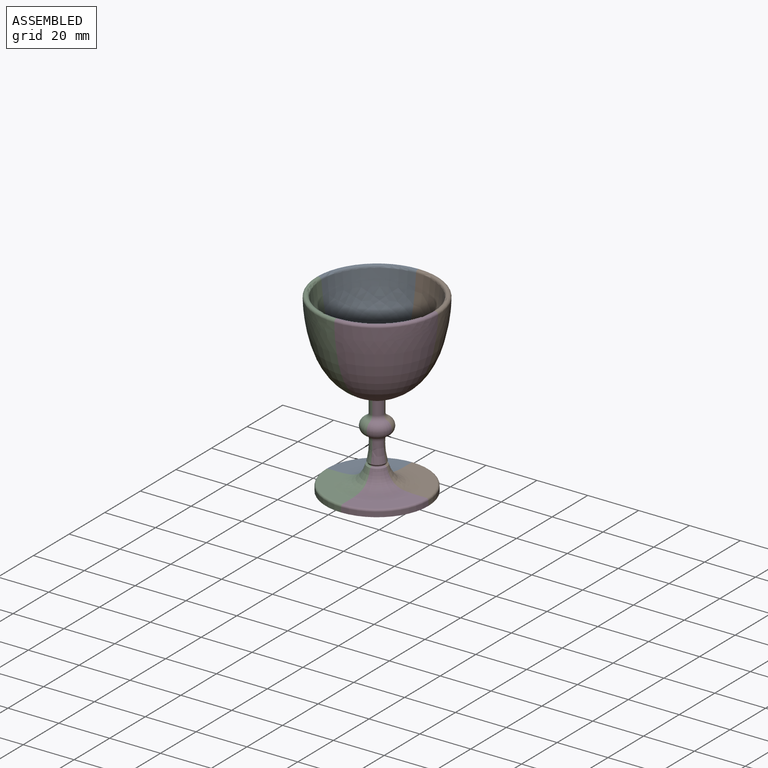
[diagram: assembled view]
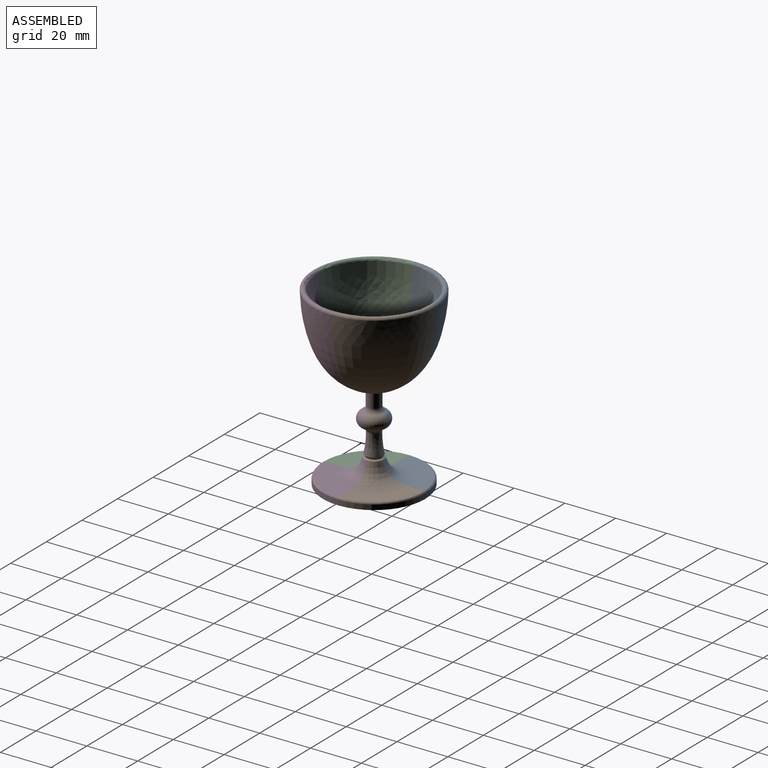
[diagram: assembled view, second angle]
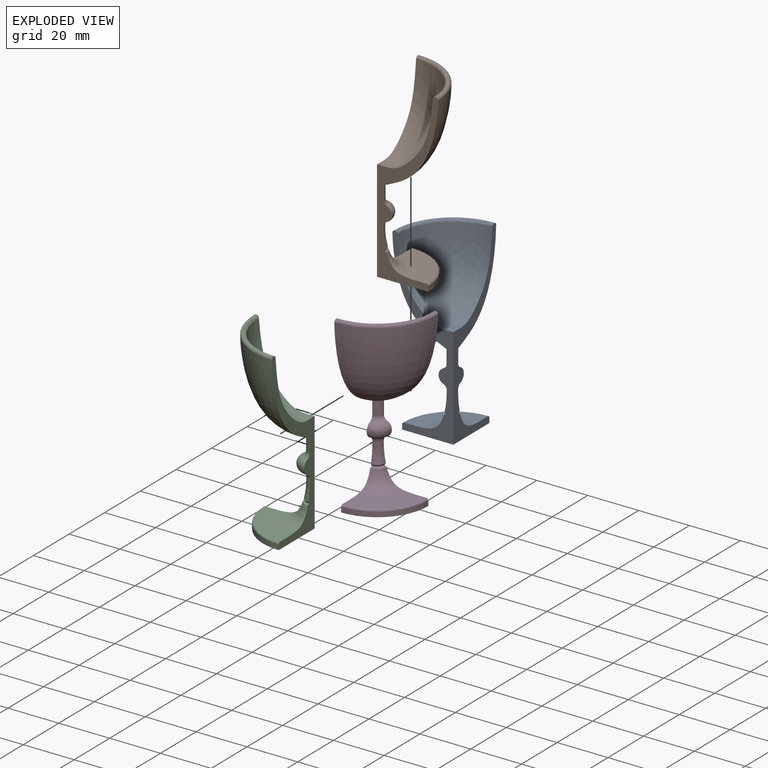
[diagram: exploded view]
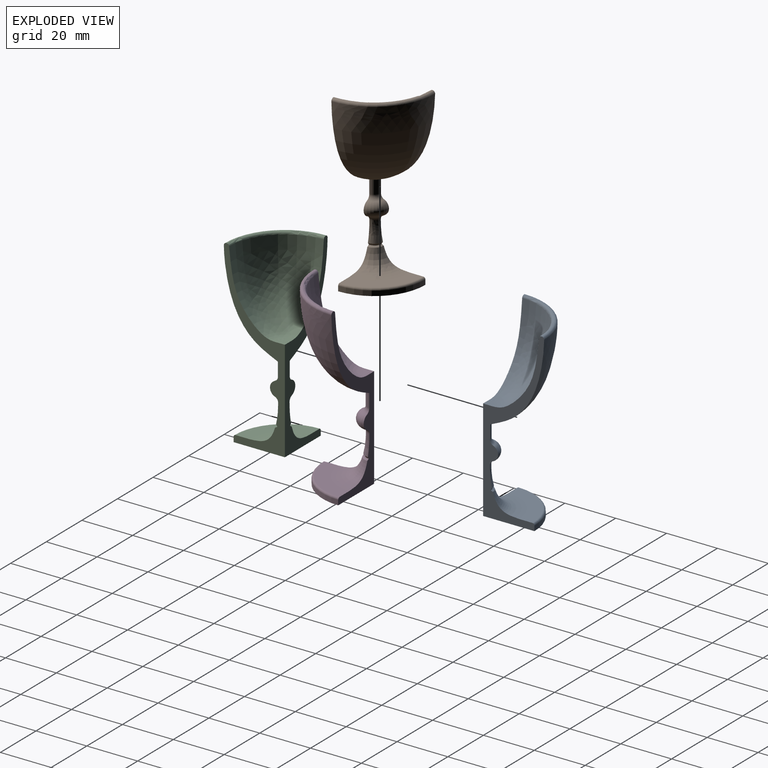
[diagram: exploded view, second angle]
ASSEMBLY  parts=4 mates=3
PART A: 20 faces, bbox 70.4x26.4x26.4 mm
  f0: plane 20.17x20.17mm, normal (-1,0,0), area 319.6mm2, adj f2,f3,f5
  f1: plane 23x23mm, normal (1,0,0), area 3mm2, adj f2,f3,f15,f16
  f2: plane 70.39x24.45mm, normal (0,-1,0), area 335.8mm2, adj f0,f1,f3,f4,f5,f6,f7,f8
  f3: plane 70.39x24.45mm, normal (0,0,-1), area 335.9mm2, adj f0,f1,f2,f4,f5,f6,f7,f8
  f4: revolved ~29.14x21.92mm, area 955.9mm2, adj f2,f3,f16
  f5: cylinder r=20.17mm len=20.17mm, axis (1,0,0), area 60.5mm2, adj f0,f2,f3,f6
  f6: torus R=19.37mm, axis (1,0,0), area 39.2mm2, adj f2,f3,f5,f7
  f7: plane 19.37x19.37mm, normal (1,0,0), area 140.9mm2, adj f2,f3,f6,f8
  f8: revolved ~14x14mm, area 169.4mm2, adj f2,f3,f7,f9
  f9: cone r=3.8mm half-angle=66.5deg, axis (-1,0,0), area 0.6mm2, adj f2,f3,f8,f19
  f10: cone r=2.8mm half-angle=41.2deg, axis (1,0,0), area 0.2mm2, adj f2,f3,f11,f19
  f11: revolved ~7.9x3.47mm, area 36.1mm2, adj f2,f3,f10,f18
  f12: torus R=2.89mm, axis (1,0,0), area 58.2mm2, adj f2,f3,f17,f18
  f13: cylinder r=2.72mm len=5.35mm, axis (1,0,0), area 22.9mm2, adj f2,f3,f14,f17
  f14: revolved ~35.73x24mm, area 1206.3mm2, adj f2,f3,f13,f15
  f15: torus R=23mm, axis (1,0,0), area 58.8mm2, adj f1,f2,f3,f14
  f16: torus R=22.92mm, axis (1,0,0), area 51.9mm2, adj f1,f2,f3,f4
  f17: torus R=4.72mm, axis (1,0,0), area 11.9mm2, adj f2,f3,f12,f13
  f18: torus R=4.63mm, axis (1,0,0), area 11.6mm2, adj f2,f3,f11,f12
  f19: bspline ~3.7x3.7mm, area 8.5mm2, adj f2,f3,f9,f10
PART B: 20 faces, bbox 70.4x26.4x26.4 mm
  f0: plane 20.17x20.17mm, normal (-1,0,0), area 319.6mm2, adj f2,f3,f5
  f1: plane 23x23mm, normal (1,0,0), area 3mm2, adj f2,f3,f15,f16
  f2: plane 70.39x24.45mm, normal (0,-1,0), area 335.9mm2, adj f0,f1,f3,f4,f5,f6,f7,f8
  f3: plane 70.39x24.45mm, normal (0,0,1), area 335.9mm2, adj f0,f1,f2,f4,f5,f6,f7,f8
  f4: revolved ~29.14x21.92mm, area 955.9mm2, adj f2,f3,f16
  f5: cylinder r=20.17mm len=20.17mm, axis (1,0,0), area 60.5mm2, adj f0,f2,f3,f6
  f6: torus R=19.37mm, axis (1,0,0), area 39.2mm2, adj f2,f3,f5,f7
  f7: plane 19.37x19.37mm, normal (1,0,0), area 140.9mm2, adj f2,f3,f6,f8
  f8: revolved ~14x14mm, area 169.4mm2, adj f2,f3,f7,f9
  f9: cone r=3.8mm half-angle=66.5deg, axis (-1,0,0), area 0.6mm2, adj f2,f3,f8,f19
  f10: cone r=2.8mm half-angle=41.2deg, axis (1,0,0), area 0.2mm2, adj f2,f3,f11,f19
  f11: revolved ~7.9x3.47mm, area 36.1mm2, adj f2,f3,f10,f18
  f12: torus R=2.89mm, axis (1,0,0), area 58.2mm2, adj f2,f3,f17,f18
  f13: cylinder r=2.72mm len=5.35mm, axis (1,0,0), area 22.9mm2, adj f2,f3,f14,f17
  f14: revolved ~35.73x24mm, area 1206.3mm2, adj f2,f3,f13,f15
  f15: torus R=23mm, axis (1,0,0), area 58.8mm2, adj f1,f2,f3,f14
  f16: torus R=22.92mm, axis (1,0,0), area 51.9mm2, adj f1,f2,f3,f4
  f17: torus R=4.72mm, axis (1,0,0), area 11.9mm2, adj f2,f3,f12,f13
  f18: torus R=4.63mm, axis (1,0,0), area 11.6mm2, adj f2,f3,f11,f12
  f19: bspline ~3.7x3.7mm, area 8.5mm2, adj f2,f3,f9,f10
PART C: 20 faces, bbox 74.5x30.5x30.5 mm
  f0: plane 23x23mm, normal (1,0,0), area 3mm2, adj f1,f3,f15,f16
  f1: plane 70.39x24.45mm, normal (0,1,0), area 335.8mm2, adj f0,f2,f3,f4,f5,f6,f7,f8
  f2: plane 20.17x20.17mm, normal (-1,0,0), area 319.6mm2, adj f1,f3,f5
  f3: plane 74.52x28.59mm, normal (0,0,-1), area 335.9mm2, adj f0,f1,f2,f4,f5,f6,f7,f8
  f4: revolved ~29.14x21.92mm, area 897.7mm2, adj f1,f3,f16
  f5: cylinder r=20.17mm len=20.17mm, axis (1,0,0), area 60.5mm2, adj f1,f2,f3,f6
  f6: torus R=19.37mm, axis (1,0,0), area 39.2mm2, adj f1,f3,f5,f7
  f7: plane 19.37x19.37mm, normal (1,0,0), area 140.9mm2, adj f1,f3,f6,f8
  f8: revolved ~14x14mm, area 169.4mm2, adj f1,f3,f7,f9
  f9: cone r=3.8mm half-angle=66.5deg, axis (-1,0,0), area 0.6mm2, adj f1,f3,f8,f19
  f10: cone r=2.8mm half-angle=41.2deg, axis (1,0,0), area 0.2mm2, adj f1,f3,f11,f19
  f11: revolved ~7.9x3.47mm, area 36.1mm2, adj f1,f3,f10,f18
  f12: torus R=2.89mm, axis (1,0,0), area 58.2mm2, adj f1,f3,f17,f18
  f13: cylinder r=2.72mm len=5.35mm, axis (1,0,0), area 22.9mm2, adj f1,f3,f14,f17
  f14: revolved ~35.73x24mm, area 1206.3mm2, adj f1,f3,f13,f15
  f15: torus R=23mm, axis (1,0,0), area 58.8mm2, adj f0,f1,f3,f14
  f16: torus R=22.92mm, axis (1,0,0), area 51.9mm2, adj f0,f1,f3,f4
  f17: torus R=4.72mm, axis (1,0,0), area 11.9mm2, adj f1,f3,f12,f13
  f18: torus R=4.63mm, axis (1,0,0), area 11.6mm2, adj f1,f3,f11,f12
  f19: bspline ~3.7x3.7mm, area 8.5mm2, adj f1,f3,f9,f10
PART D: 20 faces, bbox 74.5x30.5x37.1 mm
  f0: plane 23x23mm, normal (1,0,0), area 3mm2, adj f1,f3,f15,f16
  f1: plane 70.39x24.45mm, normal (0,1,0), area 335.9mm2, adj f0,f2,f3,f4,f5,f6,f7,f8
  f2: plane 20.17x20.17mm, normal (-1,0,0), area 319.6mm2, adj f1,f3,f5
  f3: plane 74.52x28.59mm, normal (0,0,1), area 335.9mm2, adj f0,f1,f2,f4,f5,f6,f7,f8
  f4: revolved ~29.14x28.48mm, area 1014.1mm2, adj f1,f3,f15
  f5: cylinder r=20.17mm len=20.17mm, axis (1,0,0), area 60.5mm2, adj f1,f2,f3,f6
  f6: torus R=19.37mm, axis (1,0,0), area 39.2mm2, adj f1,f3,f5,f7
  f7: plane 19.37x19.37mm, normal (1,0,0), area 140.9mm2, adj f1,f3,f6,f8
  f8: revolved ~14x14mm, area 169.4mm2, adj f1,f3,f7,f9
  f9: cone r=3.8mm half-angle=66.5deg, axis (-1,0,0), area 0.6mm2, adj f1,f3,f8,f19
  f10: cone r=2.8mm half-angle=41.2deg, axis (1,0,0), area 0.2mm2, adj f1,f3,f11,f19
  f11: revolved ~7.9x3.47mm, area 36.1mm2, adj f1,f3,f10,f17
  f12: torus R=2.89mm, axis (1,0,0), area 58.2mm2, adj f1,f3,f17,f18
  f13: cylinder r=2.72mm len=5.35mm, axis (1,0,0), area 22.9mm2, adj f1,f3,f14,f18
  f14: revolved ~35.73x24mm, area 1206.3mm2, adj f1,f3,f13,f16
  f15: torus R=22.92mm, axis (1,0,0), area 51.9mm2, adj f0,f1,f3,f4
  f16: torus R=23mm, axis (1,0,0), area 58.8mm2, adj f0,f1,f3,f14
  f17: torus R=4.63mm, axis (1,0,0), area 11.6mm2, adj f1,f3,f11,f12
  f18: torus R=4.72mm, axis (1,0,0), area 11.9mm2, adj f1,f3,f12,f13
  f19: bspline ~3.7x3.7mm, area 8.5mm2, adj f1,f3,f9,f10
PLACE A rot(axis=(0,-1,0),90deg) t=(-65.85,-7.1,33.55)mm
PLACE B rot(axis=(0,-1,0),90deg) t=(-65.85,-7.1,33.55)mm
PLACE C rot(axis=(0,-1,0),90deg) t=(-65.85,-7.1,33.55)mm
PLACE D rot(axis=(0,-1,0),90deg) t=(-65.85,-7.1,33.55)mm
MATE fastened A.f2 <-> C.f1  axis (0,-1,0) through (-75.94,-7.1,-41.02)mm
MATE fastened D.f7 <-> C.f7  axis (0,0,1) through (-65.85,-26.48,-38.31)mm
MATE fastened B.f7 <-> A.f7  axis (0,0,1) through (-65.85,12.27,-38.31)mm
